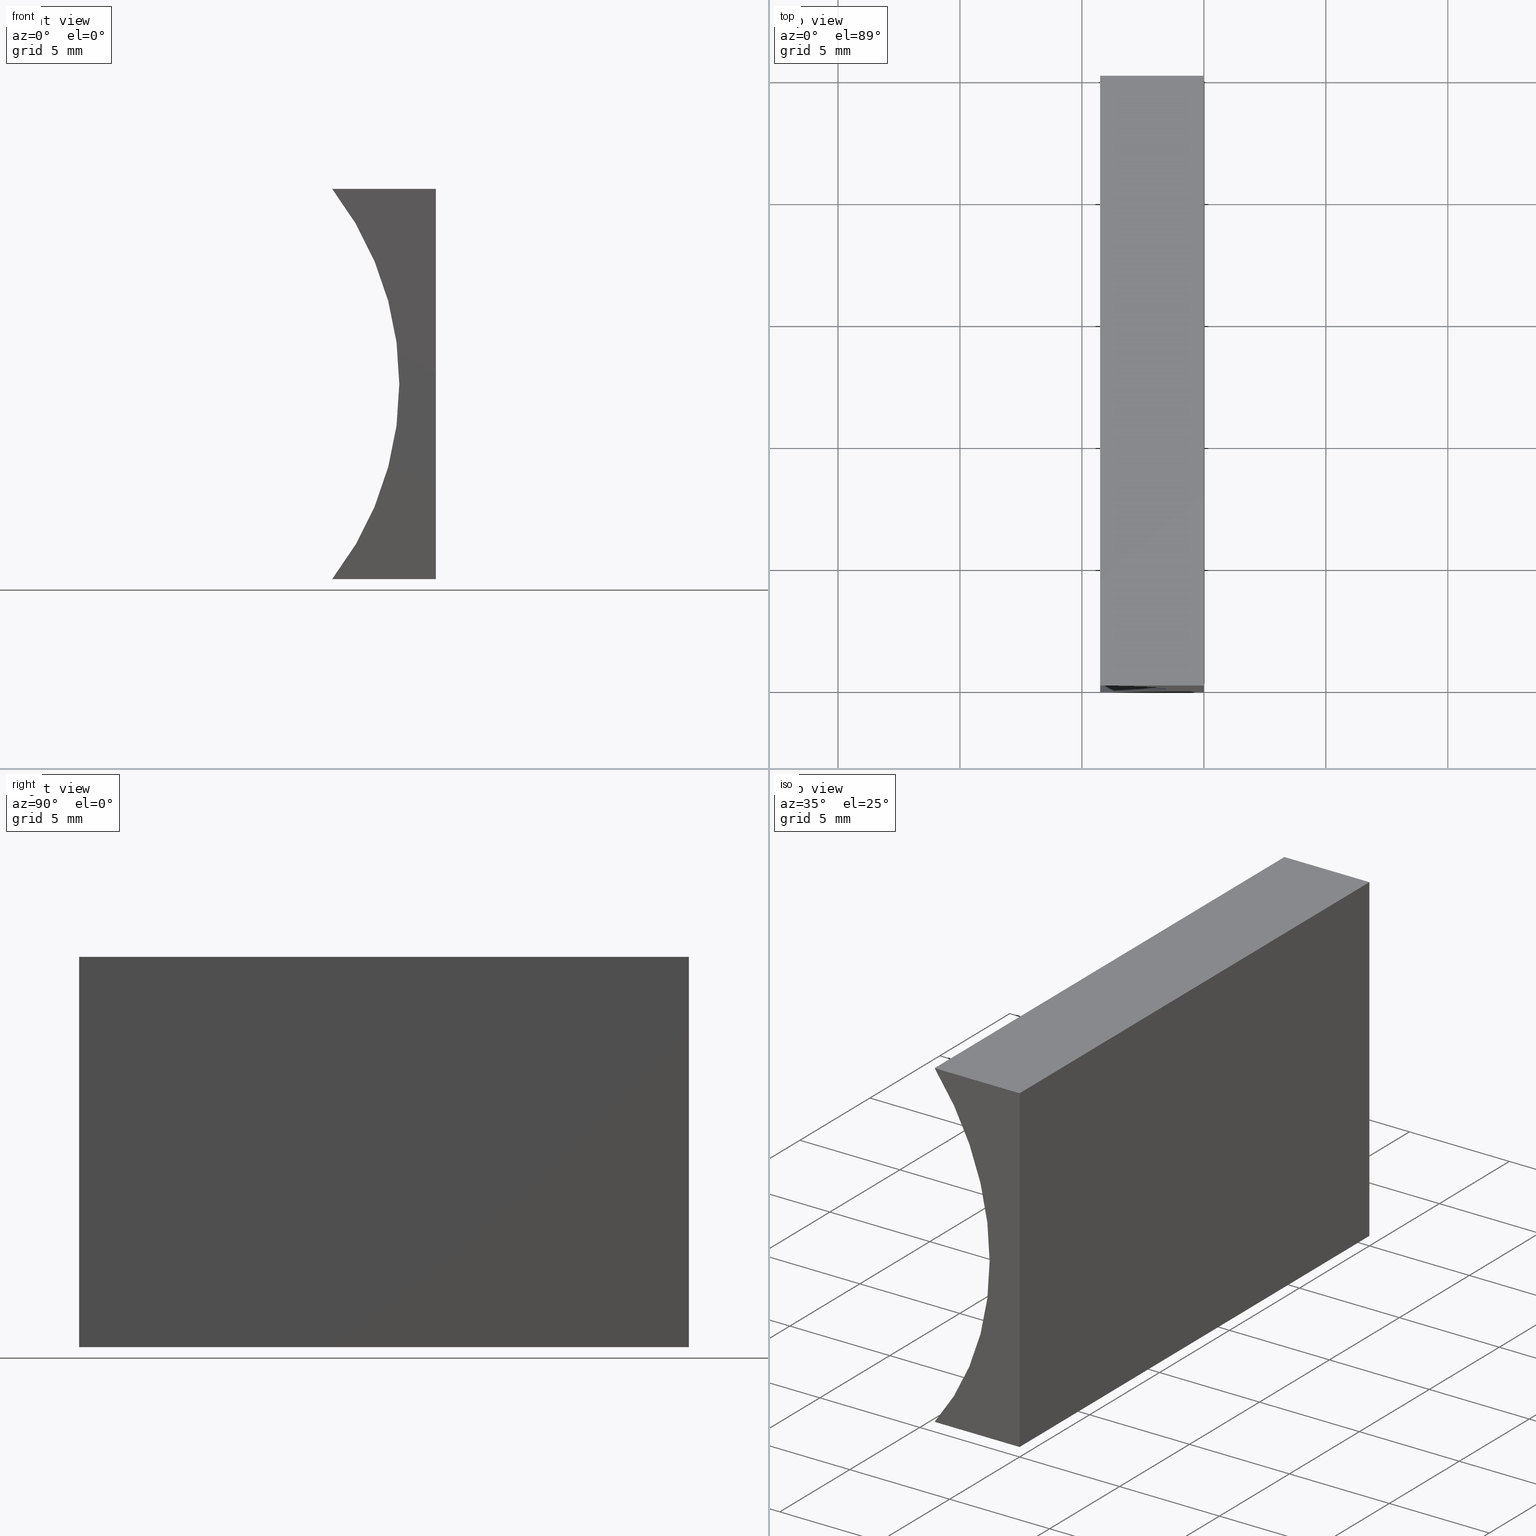
[diagram: canonical four-view strip — front | top / right | iso, engineering-drawing reading convention]
A machine part, canonical four-view strip (front | top / right | iso — engineering-drawing reading convention). The complete STEP part file that produces these views, byte-faithful:
ISO-10303-21;
HEADER;
FILE_DESCRIPTION (( 'STEP AP214' ),
    '1' );
FILE_NAME ('155354.STEP',
    '2019-06-28T06:26:36',
    ( 'user' ),
    ( '΢���й�' ),
    'SwSTEP 2.0',
    'SolidWorks 2016',
    '' );
FILE_SCHEMA (( 'AUTOMOTIVE_DESIGN' ));
ENDSEC;

DATA;
#1 = ADVANCED_FACE ( 'NONE', ( #52 ), #100, .F. ) ;
#2 = CARTESIAN_POINT ( 'NONE',  ( -14.49999999999999800, 0.0000000000000000000, 8.000000000000003600 ) ) ;
#3 = VECTOR ( 'NONE', #71, 1000.000000000000000 ) ;
#4 = EDGE_CURVE ( 'NONE', #16, #123, #56, .T. ) ;
#5 = EDGE_LOOP ( 'NONE', ( #121, #113, #126, #68 ) ) ;
#6 = FILL_AREA_STYLE_COLOUR ( '', #156 ) ;
#7 = CARTESIAN_POINT ( 'NONE',  ( 9.797174393178825700E-016, 0.0000000000000000000, 16.00000000000000000 ) ) ;
#8 = ORIENTED_EDGE ( 'NONE', *, *, #90, .F. ) ;
#9 = VERTEX_POINT ( 'NONE', #13 ) ;
#10 = VECTOR ( 'NONE', #101, 1000.000000000000000 ) ;
#11 = AXIS2_PLACEMENT_3D ( 'NONE', #28, #107, #153 ) ;
#12 = CLOSED_SHELL ( 'NONE', ( #1, #168, #186, #152, #41, #184 ) ) ;
#13 = CARTESIAN_POINT ( 'NONE',  ( 0.0000000000000000000, 25.00000000000000000, 0.0000000000000000000 ) ) ;
#14 = ORIENTED_EDGE ( 'NONE', *, *, #90, .T. ) ;
#15 = FACE_OUTER_BOUND ( 'NONE', #159, .T. ) ;
#16 = VERTEX_POINT ( 'NONE', #134 ) ;
#17 = CARTESIAN_POINT ( 'NONE',  ( -4.253049234040399400, 0.0000000000000000000, 16.00000000000000000 ) ) ;
#18 = EDGE_CURVE ( 'NONE', #93, #155, #96, .T. ) ;
#19 = ORIENTED_EDGE ( 'NONE', *, *, #182, .F. ) ;
#20 =( NAMED_UNIT ( * ) PLANE_ANGLE_UNIT ( ) SI_UNIT ( $, .RADIAN. ) );
#21 = EDGE_LOOP ( 'NONE', ( #29, #19, #83, #136 ) ) ;
#22 = VECTOR ( 'NONE', #91, 1000.000000000000000 ) ;
#23 = SURFACE_STYLE_FILL_AREA ( #189 ) ;
#24 = COLOUR_RGB ( '',1.000000000000000000, 1.000000000000000000, 1.000000000000000000 ) ;
#25 = CARTESIAN_POINT ( 'NONE',  ( 9.797174393178825700E-016, 25.00000000000000000, 16.00000000000000000 ) ) ;
#26 = CARTESIAN_POINT ( 'NONE',  ( 0.0000000000000000000, 0.0000000000000000000, 0.0000000000000000000 ) ) ;
#27 = CARTESIAN_POINT ( 'NONE',  ( -4.253049234040399400, 25.00000000000000000, 16.00000000000000000 ) ) ;
#28 = CARTESIAN_POINT ( 'NONE',  ( -14.49999999999999800, 25.00000000000000000, 8.000000000000003600 ) ) ;
#29 = ORIENTED_EDGE ( 'NONE', *, *, #4, .T. ) ;
#30 = DIRECTION ( 'NONE',  ( 0.0000000000000000000, 1.000000000000000000, 0.0000000000000000000 ) ) ;
#31 =( GEOMETRIC_REPRESENTATION_CONTEXT ( 3 ) GLOBAL_UNCERTAINTY_ASSIGNED_CONTEXT ( ( #37 ) ) GLOBAL_UNIT_ASSIGNED_CONTEXT ( ( #43, #20, #190 ) ) REPRESENTATION_CONTEXT ( 'NONE', 'WORKASPACE' ) );
#32 = LINE ( 'NONE', #148, #67 ) ;
#33 = EDGE_LOOP ( 'NONE', ( #138, #161, #201, #47 ) ) ;
#34 = ORIENTED_EDGE ( 'NONE', *, *, #122, .F. ) ;
#35 = MECHANICAL_DESIGN_GEOMETRIC_PRESENTATION_REPRESENTATION (  '', ( #58 ), #31 ) ;
#36 = VERTEX_POINT ( 'NONE', #88 ) ;
#37 = UNCERTAINTY_MEASURE_WITH_UNIT (LENGTH_MEASURE( 1.000000000000000100E-005 ), #43, 'distance_accuracy_value', 'NONE');
#38 = ORIENTED_EDGE ( 'NONE', *, *, #137, .F. ) ;
#39 = APPLICATION_CONTEXT ( 'automotive_design' ) ;
#40 = SHAPE_DEFINITION_REPRESENTATION ( #163, #175 ) ;
#41 = ADVANCED_FACE ( 'NONE', ( #109 ), #191, .T. ) ;
#42 = LINE ( 'NONE', #178, #3 ) ;
#43 =( LENGTH_UNIT ( ) NAMED_UNIT ( * ) SI_UNIT ( .MILLI., .METRE. ) );
#44 = EDGE_CURVE ( 'NONE', #187, #204, #32, .T. ) ;
#45 = PLANE ( 'NONE',  #73 ) ;
#46 = EDGE_CURVE ( 'NONE', #155, #36, #108, .T. ) ;
#47 = ORIENTED_EDGE ( 'NONE', *, *, #171, .T. ) ;
#48 = VECTOR ( 'NONE', #133, 1000.000000000000000 ) ;
#49 = PRESENTATION_LAYER_ASSIGNMENT (  '', '', ( #58 ) ) ;
#50 = APPLICATION_PROTOCOL_DEFINITION ( 'draft international standard', 'automotive_design', 1998, #142 ) ;
#51 = CARTESIAN_POINT ( 'NONE',  ( 0.0000000000000000000, 0.0000000000000000000, 0.0000000000000000000 ) ) ;
#52 = FACE_OUTER_BOUND ( 'NONE', #89, .T. ) ;
#53 = LINE ( 'NONE', #176, #150 ) ;
#54 = CARTESIAN_POINT ( 'NONE',  ( 9.797174393178825700E-016, 25.00000000000000000, 16.00000000000000000 ) ) ;
#55 =( NAMED_UNIT ( * ) SI_UNIT ( $, .STERADIAN. ) SOLID_ANGLE_UNIT ( ) );
#56 = CIRCLE ( 'NONE', #202, 13.00000000000000200 ) ;
#57 = VECTOR ( 'NONE', #162, 1000.000000000000000 ) ;
#58 = STYLED_ITEM ( 'NONE', ( #194 ), #175 ) ;
#59 =( NAMED_UNIT ( * ) PLANE_ANGLE_UNIT ( ) SI_UNIT ( $, .RADIAN. ) );
#60 = SURFACE_SIDE_STYLE ('',( #127 ) ) ;
#61 = DIRECTION ( 'NONE',  ( -0.0000000000000000000, -1.000000000000000000, -0.0000000000000000000 ) ) ;
#62 = DIRECTION ( 'NONE',  ( 0.0000000000000000000, 0.0000000000000000000, 1.000000000000000000 ) ) ;
#63 = EDGE_LOOP ( 'NONE', ( #77, #34, #86, #193 ) ) ;
#64 = DIRECTION ( 'NONE',  ( 1.000000000000000000, 0.0000000000000000000, 0.0000000000000000000 ) ) ;
#65 = ORIENTED_EDGE ( 'NONE', *, *, #84, .F. ) ;
#66 = LINE ( 'NONE', #144, #10 ) ;
#67 = VECTOR ( 'NONE', #116, 1000.000000000000000 ) ;
#68 = ORIENTED_EDGE ( 'NONE', *, *, #122, .T. ) ;
#69 = CYLINDRICAL_SURFACE ( 'NONE', #115, 13.00000000000000200 ) ;
#70 = CARTESIAN_POINT ( 'NONE',  ( -14.49999999999999800, 0.0000000000000000000, 8.000000000000003600 ) ) ;
#71 = DIRECTION ( 'NONE',  ( -1.000000000000000000, 0.0000000000000000000, 0.0000000000000000000 ) ) ;
#72 = AXIS2_PLACEMENT_3D ( 'NONE', #79, #120, #166 ) ;
#73 = AXIS2_PLACEMENT_3D ( 'NONE', #25, #149, #167 ) ;
#74 = ORIENTED_EDGE ( 'NONE', *, *, #80, .F. ) ;
#75 =( GEOMETRIC_REPRESENTATION_CONTEXT ( 3 ) GLOBAL_UNCERTAINTY_ASSIGNED_CONTEXT ( ( #165 ) ) GLOBAL_UNIT_ASSIGNED_CONTEXT ( ( #141, #59, #55 ) ) REPRESENTATION_CONTEXT ( 'NONE', 'WORKASPACE' ) );
#76 = DIRECTION ( 'NONE',  ( -0.0000000000000000000, -1.000000000000000000, -0.0000000000000000000 ) ) ;
#77 = ORIENTED_EDGE ( 'NONE', *, *, #80, .T. ) ;
#78 = AXIS2_PLACEMENT_3D ( 'NONE', #70, #30, #119 ) ;
#79 = CARTESIAN_POINT ( 'NONE',  ( 0.0000000000000000000, 25.00000000000000000, 0.0000000000000000000 ) ) ;
#80 = EDGE_CURVE ( 'NONE', #123, #187, #147, .T. ) ;
#81 = ORIENTED_EDGE ( 'NONE', *, *, #4, .F. ) ;
#82 =( GEOMETRIC_REPRESENTATION_CONTEXT ( 3 ) GLOBAL_UNCERTAINTY_ASSIGNED_CONTEXT ( ( #180 ) ) GLOBAL_UNIT_ASSIGNED_CONTEXT ( ( #92, #183, #203 ) ) REPRESENTATION_CONTEXT ( 'NONE', 'WORKASPACE' ) );
#83 = ORIENTED_EDGE ( 'NONE', *, *, #18, .F. ) ;
#84 = EDGE_CURVE ( 'NONE', #93, #16, #118, .T. ) ;
#85 = SURFACE_STYLE_USAGE ( .BOTH. , #104 ) ;
#86 = ORIENTED_EDGE ( 'NONE', *, *, #46, .F. ) ;
#87 = MECHANICAL_DESIGN_GEOMETRIC_PRESENTATION_REPRESENTATION (  '', ( #196 ), #82 ) ;
#88 = CARTESIAN_POINT ( 'NONE',  ( 9.797174393178825700E-016, 25.00000000000000000, 16.00000000000000000 ) ) ;
#89 = EDGE_LOOP ( 'NONE', ( #14, #65, #38, #192 ) ) ;
#90 = EDGE_CURVE ( 'NONE', #204, #16, #42, .T. ) ;
#91 = DIRECTION ( 'NONE',  ( -0.0000000000000000000, -1.000000000000000000, -0.0000000000000000000 ) ) ;
#92 =( LENGTH_UNIT ( ) NAMED_UNIT ( * ) SI_UNIT ( .MILLI., .METRE. ) );
#93 = VERTEX_POINT ( 'NONE', #131 ) ;
#94 = FACE_OUTER_BOUND ( 'NONE', #21, .T. ) ;
#95 = VECTOR ( 'NONE', #110, 1000.000000000000000 ) ;
#96 = CIRCLE ( 'NONE', #139, 13.00000000000000200 ) ;
#97 = DIRECTION ( 'NONE',  ( 0.0000000000000000000, -0.0000000000000000000, 1.000000000000000000 ) ) ;
#98 = CARTESIAN_POINT ( 'NONE',  ( 0.0000000000000000000, 25.00000000000000000, 0.0000000000000000000 ) ) ;
#99 = VECTOR ( 'NONE', #164, 1000.000000000000000 ) ;
#100 = PLANE ( 'NONE',  #199 ) ;
#101 = DIRECTION ( 'NONE',  ( -6.123233995736766000E-017, -0.0000000000000000000, -1.000000000000000000 ) ) ;
#102 = FACE_OUTER_BOUND ( 'NONE', #5, .T. ) ;
#103 = PRODUCT ( '155354', '155354', '', ( #179 ) ) ;
#104 = SURFACE_SIDE_STYLE ('',( #23 ) ) ;
#105 = PRODUCT_DEFINITION_CONTEXT ( 'detailed design', #142, 'design' ) ;
#106 = LINE ( 'NONE', #98, #48 ) ;
#107 = DIRECTION ( 'NONE',  ( 0.0000000000000000000, 1.000000000000000000, 0.0000000000000000000 ) ) ;
#108 = LINE ( 'NONE', #160, #99 ) ;
#109 = FACE_OUTER_BOUND ( 'NONE', #33, .T. ) ;
#110 = DIRECTION ( 'NONE',  ( -0.0000000000000000000, -1.000000000000000000, -0.0000000000000000000 ) ) ;
#111 = SURFACE_STYLE_USAGE ( .BOTH. , #60 ) ;
#112 = FACE_OUTER_BOUND ( 'NONE', #63, .T. ) ;
#113 = ORIENTED_EDGE ( 'NONE', *, *, #157, .F. ) ;
#114 = DIRECTION ( 'NONE',  ( -0.0000000000000000000, -1.000000000000000000, -0.0000000000000000000 ) ) ;
#115 = AXIS2_PLACEMENT_3D ( 'NONE', #130, #114, #172 ) ;
#116 = DIRECTION ( 'NONE',  ( -6.123233995736766000E-017, -0.0000000000000000000, -1.000000000000000000 ) ) ;
#117 = VECTOR ( 'NONE', #174, 1000.000000000000000 ) ;
#118 = LINE ( 'NONE', #200, #57 ) ;
#119 = DIRECTION ( 'NONE',  ( 0.0000000000000000000, -0.0000000000000000000, 1.000000000000000000 ) ) ;
#120 = DIRECTION ( 'NONE',  ( -1.000000000000000000, 0.0000000000000000000, 6.123233995736766000E-017 ) ) ;
#121 = ORIENTED_EDGE ( 'NONE', *, *, #44, .T. ) ;
#122 = EDGE_CURVE ( 'NONE', #36, #187, #129, .T. ) ;
#123 = VERTEX_POINT ( 'NONE', #17 ) ;
#124 = CARTESIAN_POINT ( 'NONE',  ( -14.49999999999999800, 25.00000000000000000, 8.000000000000003600 ) ) ;
#125 = DIRECTION ( 'NONE',  ( 0.0000000000000000000, 0.0000000000000000000, 1.000000000000000000 ) ) ;
#126 = ORIENTED_EDGE ( 'NONE', *, *, #171, .F. ) ;
#127 = SURFACE_STYLE_FILL_AREA ( #198 ) ;
#128 = CARTESIAN_POINT ( 'NONE',  ( -4.253049234040399400, 25.00000000000000000, 16.00000000000000000 ) ) ;
#129 = LINE ( 'NONE', #54, #95 ) ;
#130 = CARTESIAN_POINT ( 'NONE',  ( -14.49999999999999800, 25.00000000000000000, 8.000000000000003600 ) ) ;
#131 = CARTESIAN_POINT ( 'NONE',  ( -4.253049234040400300, 25.00000000000000000, 1.734723475976807100E-015 ) ) ;
#132 = DIRECTION ( 'NONE',  ( -0.0000000000000000000, -1.000000000000000000, -0.0000000000000000000 ) ) ;
#133 = DIRECTION ( 'NONE',  ( -1.000000000000000000, 0.0000000000000000000, 0.0000000000000000000 ) ) ;
#134 = CARTESIAN_POINT ( 'NONE',  ( -4.253049234040400300, 0.0000000000000000000, 1.734723475976807100E-015 ) ) ;
#135 = APPLICATION_PROTOCOL_DEFINITION ( 'draft international standard', 'automotive_design', 1998, #39 ) ;
#136 = ORIENTED_EDGE ( 'NONE', *, *, #84, .T. ) ;
#137 = EDGE_CURVE ( 'NONE', #9, #93, #106, .T. ) ;
#138 = ORIENTED_EDGE ( 'NONE', *, *, #137, .T. ) ;
#139 = AXIS2_PLACEMENT_3D ( 'NONE', #124, #76, #185 ) ;
#140 = FILL_AREA_STYLE_COLOUR ( '', #24 ) ;
#141 =( LENGTH_UNIT ( ) NAMED_UNIT ( * ) SI_UNIT ( .MILLI., .METRE. ) );
#142 = APPLICATION_CONTEXT ( 'automotive_design' ) ;
#143 = LINE ( 'NONE', #27, #22 ) ;
#144 = CARTESIAN_POINT ( 'NONE',  ( 0.0000000000000000000, 25.00000000000000000, 0.0000000000000000000 ) ) ;
#145 = AXIS2_PLACEMENT_3D ( 'NONE', #51, #62, #64 ) ;
#146 = PRESENTATION_LAYER_ASSIGNMENT (  '', '', ( #196 ) ) ;
#147 = LINE ( 'NONE', #181, #117 ) ;
#148 = CARTESIAN_POINT ( 'NONE',  ( 0.0000000000000000000, 0.0000000000000000000, 0.0000000000000000000 ) ) ;
#149 = DIRECTION ( 'NONE',  ( 0.0000000000000000000, 0.0000000000000000000, -1.000000000000000000 ) ) ;
#150 = VECTOR ( 'NONE', #132, 1000.000000000000000 ) ;
#151 = PRODUCT_DEFINITION ( 'δ֪', '', #177, #105 ) ;
#152 = ADVANCED_FACE ( 'NONE', ( #102 ), #158, .F. ) ;
#153 = DIRECTION ( 'NONE',  ( 0.0000000000000000000, -0.0000000000000000000, 1.000000000000000000 ) ) ;
#154 = PLANE ( 'NONE',  #78 ) ;
#155 = VERTEX_POINT ( 'NONE', #128 ) ;
#156 = COLOUR_RGB ( '',1.000000000000000000, 1.000000000000000000, 1.000000000000000000 ) ;
#157 = EDGE_CURVE ( 'NONE', #9, #204, #53, .T. ) ;
#158 = PLANE ( 'NONE',  #72 ) ;
#159 = EDGE_LOOP ( 'NONE', ( #8, #188, #74, #81 ) ) ;
#160 = CARTESIAN_POINT ( 'NONE',  ( 9.797174393178825700E-016, 25.00000000000000000, 16.00000000000000000 ) ) ;
#161 = ORIENTED_EDGE ( 'NONE', *, *, #18, .T. ) ;
#162 = DIRECTION ( 'NONE',  ( -0.0000000000000000000, -1.000000000000000000, -0.0000000000000000000 ) ) ;
#163 = PRODUCT_DEFINITION_SHAPE ( 'NONE', 'NONE',  #151 ) ;
#164 = DIRECTION ( 'NONE',  ( 1.000000000000000000, -0.0000000000000000000, -0.0000000000000000000 ) ) ;
#165 = UNCERTAINTY_MEASURE_WITH_UNIT (LENGTH_MEASURE( 1.000000000000000100E-005 ), #141, 'distance_accuracy_value', 'NONE');
#166 = DIRECTION ( 'NONE',  ( 6.123233995736766000E-017, 0.0000000000000000000, 1.000000000000000000 ) ) ;
#167 = DIRECTION ( 'NONE',  ( -1.000000000000000000, 0.0000000000000000000, -0.0000000000000000000 ) ) ;
#168 = ADVANCED_FACE ( 'NONE', ( #94 ), #69, .F. ) ;
#169 = PRESENTATION_STYLE_ASSIGNMENT (( #85 ) ) ;
#170 = MANIFOLD_SOLID_BREP ( '͹̨-����1', #12 ) ;
#171 = EDGE_CURVE ( 'NONE', #36, #9, #66, .T. ) ;
#172 = DIRECTION ( 'NONE',  ( 0.0000000000000000000, 0.0000000000000000000, -1.000000000000000000 ) ) ;
#173 = PRODUCT_RELATED_PRODUCT_CATEGORY ( 'part', '', ( #103 ) ) ;
#174 = DIRECTION ( 'NONE',  ( 1.000000000000000000, -0.0000000000000000000, -0.0000000000000000000 ) ) ;
#175 = ADVANCED_BREP_SHAPE_REPRESENTATION ( '155354', ( #170, #145 ), #75 ) ;
#176 = CARTESIAN_POINT ( 'NONE',  ( 0.0000000000000000000, 25.00000000000000000, 0.0000000000000000000 ) ) ;
#177 = PRODUCT_DEFINITION_FORMATION_WITH_SPECIFIED_SOURCE ( '�κ�', '', #103, .NOT_KNOWN. ) ;
#178 = CARTESIAN_POINT ( 'NONE',  ( 0.0000000000000000000, 0.0000000000000000000, 0.0000000000000000000 ) ) ;
#179 = PRODUCT_CONTEXT ( 'NONE', #39, 'mechanical' ) ;
#180 = UNCERTAINTY_MEASURE_WITH_UNIT (LENGTH_MEASURE( 1.000000000000000100E-005 ), #92, 'distance_accuracy_value', 'NONE');
#181 = CARTESIAN_POINT ( 'NONE',  ( 9.797174393178825700E-016, 0.0000000000000000000, 16.00000000000000000 ) ) ;
#182 = EDGE_CURVE ( 'NONE', #155, #123, #143, .T. ) ;
#183 =( NAMED_UNIT ( * ) PLANE_ANGLE_UNIT ( ) SI_UNIT ( $, .RADIAN. ) );
#184 = ADVANCED_FACE ( 'NONE', ( #15 ), #154, .F. ) ;
#185 = DIRECTION ( 'NONE',  ( 0.0000000000000000000, 0.0000000000000000000, 1.000000000000000000 ) ) ;
#186 = ADVANCED_FACE ( 'NONE', ( #112 ), #45, .F. ) ;
#187 = VERTEX_POINT ( 'NONE', #7 ) ;
#188 = ORIENTED_EDGE ( 'NONE', *, *, #44, .F. ) ;
#189 = FILL_AREA_STYLE ('',( #6 ) ) ;
#190 =( NAMED_UNIT ( * ) SI_UNIT ( $, .STERADIAN. ) SOLID_ANGLE_UNIT ( ) );
#191 = PLANE ( 'NONE',  #11 ) ;
#192 = ORIENTED_EDGE ( 'NONE', *, *, #157, .T. ) ;
#193 = ORIENTED_EDGE ( 'NONE', *, *, #182, .T. ) ;
#194 = PRESENTATION_STYLE_ASSIGNMENT (( #111 ) ) ;
#195 = CARTESIAN_POINT ( 'NONE',  ( 0.0000000000000000000, 25.00000000000000000, 0.0000000000000000000 ) ) ;
#196 = STYLED_ITEM ( 'NONE', ( #169 ), #170 ) ;
#197 = DIRECTION ( 'NONE',  ( 1.000000000000000000, 0.0000000000000000000, -0.0000000000000000000 ) ) ;
#198 = FILL_AREA_STYLE ('',( #140 ) ) ;
#199 = AXIS2_PLACEMENT_3D ( 'NONE', #195, #97, #197 ) ;
#200 = CARTESIAN_POINT ( 'NONE',  ( -4.253049234040400300, 25.00000000000000000, 1.734723475976807100E-015 ) ) ;
#201 = ORIENTED_EDGE ( 'NONE', *, *, #46, .T. ) ;
#202 = AXIS2_PLACEMENT_3D ( 'NONE', #2, #61, #125 ) ;
#203 =( NAMED_UNIT ( * ) SI_UNIT ( $, .STERADIAN. ) SOLID_ANGLE_UNIT ( ) );
#204 = VERTEX_POINT ( 'NONE', #26 ) ;
ENDSEC;
END-ISO-10303-21;
